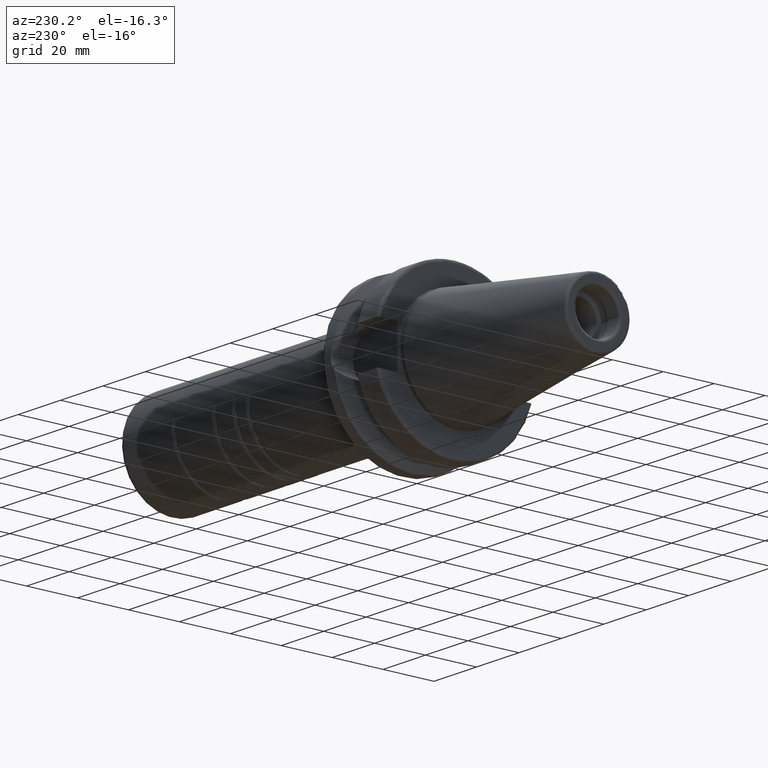
[diagram: clean part render]
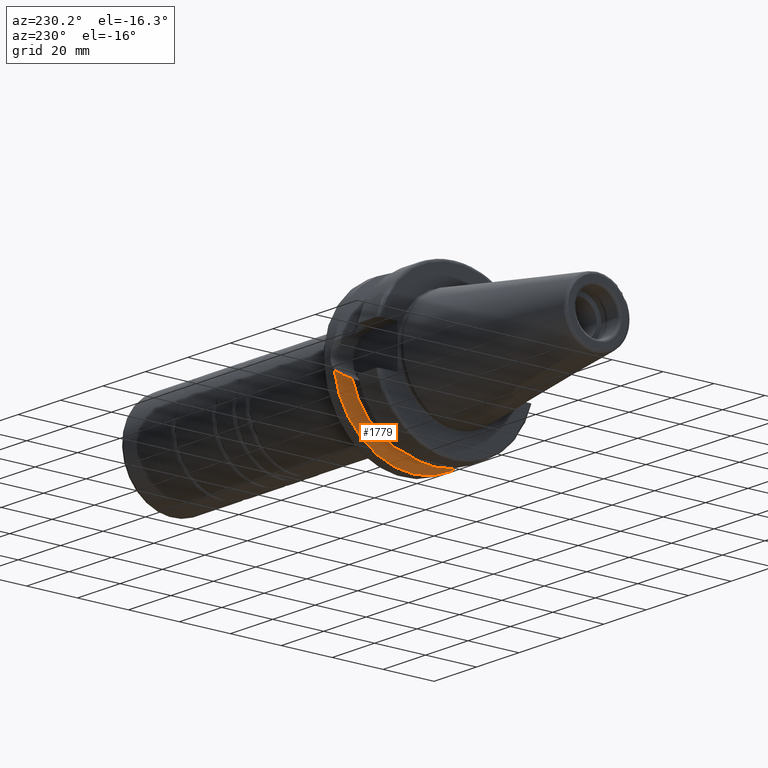
[diagram: same view with one face highlighted and labeled with its STEP entity id]
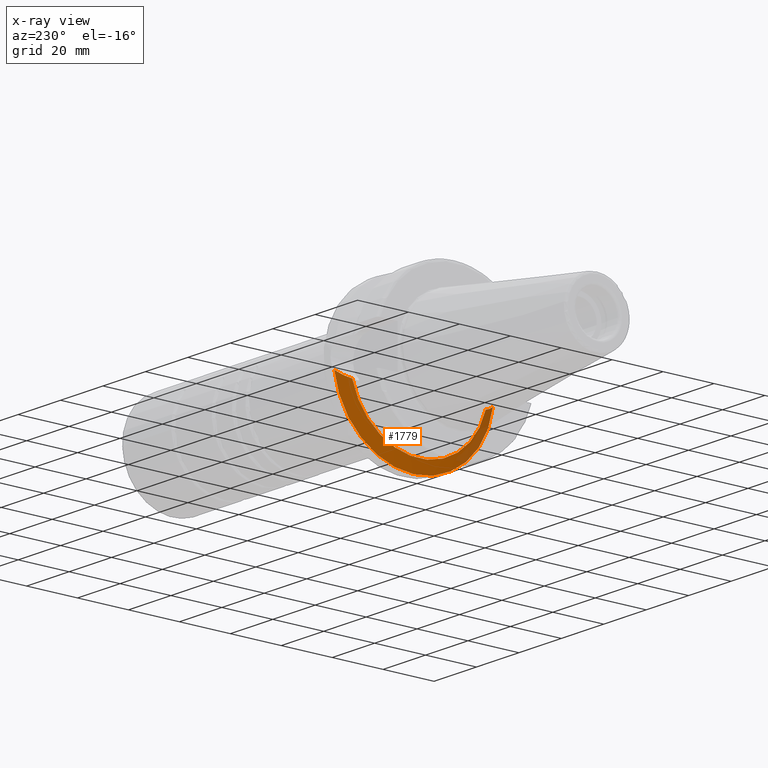
[diagram: x-ray of the same camera — body ghosted, the highlighted face saturated]
A machine part, auxiliary view. The second image highlights one B-rep face of the part: STEP entity #1779.
The next image is the same camera in x-ray: the body ghosted, the highlighted face saturated — about 15% of this face is hidden behind the body in this view.
In plain terms, the highlighted conical surface has half-angle 60.125 deg.
Its self-contained STEP definition (entity closure, byte-faithful):
#80=CONICAL_SURFACE('',#2065,29.2970358274569,1.0493792127616);
#201=FACE_OUTER_BOUND('',#314,.T.);
#314=EDGE_LOOP('',(#1348,#1349,#1350,#1351));
#441=CIRCLE('',#2062,31.5);
#444=CIRCLE('',#2066,27.0940716549138);
#739=B_SPLINE_CURVE_WITH_KNOTS('',3,(#3023,#3024,#3025,#3026,#3027,#3028),
 .UNSPECIFIED.,.F.,.F.,(4,2,4),(3.12975744792551,3.6269928875698,3.7084873746139),
 .UNSPECIFIED.);
#747=B_SPLINE_CURVE_WITH_KNOTS('',3,(#3139,#3140,#3141,#3142,#3143,#3144),
 .UNSPECIFIED.,.F.,.F.,(4,2,4),(1.46421027899563,1.54570476603974,2.04294020568402),
 .UNSPECIFIED.);
#795=VERTEX_POINT('',#3020);
#796=VERTEX_POINT('',#3022);
#818=VERTEX_POINT('',#3121);
#820=VERTEX_POINT('',#3137);
#989=EDGE_CURVE('',#796,#795,#739,.T.);
#1015=EDGE_CURVE('',#796,#818,#441,.T.);
#1019=EDGE_CURVE('',#795,#820,#444,.T.);
#1020=EDGE_CURVE('',#820,#818,#747,.T.);
#1348=ORIENTED_EDGE('',*,*,#989,.T.);
#1349=ORIENTED_EDGE('',*,*,#1019,.T.);
#1350=ORIENTED_EDGE('',*,*,#1020,.T.);
#1351=ORIENTED_EDGE('',*,*,#1015,.F.);
#1779=ADVANCED_FACE('',(#201),#80,.T.);
#2062=AXIS2_PLACEMENT_3D('',#3122,#2412,#2413);
#2065=AXIS2_PLACEMENT_3D('',#3136,#2418,#2419);
#2066=AXIS2_PLACEMENT_3D('',#3138,#2420,#2421);
#2412=DIRECTION('center_axis',(1.,0.,0.));
#2413=DIRECTION('ref_axis',(0.,0.,-1.));
#2418=DIRECTION('center_axis',(1.,0.,0.));
#2419=DIRECTION('ref_axis',(0.,1.,0.));
#2420=DIRECTION('center_axis',(1.,0.,0.));
#2421=DIRECTION('ref_axis',(0.,0.,-1.));
#3020=CARTESIAN_POINT('',(19.1,-26.201311395455,-6.89782574439221));
#3022=CARTESIAN_POINT('',(21.6309636926618,-31.1782420264945,-4.49079326370462));
#3023=CARTESIAN_POINT('Ctrl Pts',(21.6309636926618,-31.1782420264945,-4.49079326370461));
#3024=CARTESIAN_POINT('Ctrl Pts',(20.9728756148302,-29.8797957262939,-5.46983244373119));
#3025=CARTESIAN_POINT('Ctrl Pts',(20.1784155384866,-28.3157123387483,-6.1823136897693));
#3026=CARTESIAN_POINT('Ctrl Pts',(19.3406963650696,-26.6728819297427,-6.74867108656043));
#3027=CARTESIAN_POINT('Ctrl Pts',(19.2210929544554,-26.438473693351,-6.82497151762397));
#3028=CARTESIAN_POINT('Ctrl Pts',(19.1,-26.201311395455,-6.89782574439222));
#3121=CARTESIAN_POINT('',(21.6309636926618,31.1782420264945,-4.49079326370462));
#3122=CARTESIAN_POINT('Origin',(21.6309636926618,0.,0.));
#3136=CARTESIAN_POINT('Origin',(20.3654818463309,0.,0.));
#3137=CARTESIAN_POINT('',(19.1,26.201311395455,-6.89782574439221));
#3138=CARTESIAN_POINT('Origin',(19.1,0.,0.));
#3139=CARTESIAN_POINT('Ctrl Pts',(19.1,26.201311395455,-6.89782574439221));
#3140=CARTESIAN_POINT('Ctrl Pts',(19.2210929544554,26.438473693351,-6.82497151762396));
#3141=CARTESIAN_POINT('Ctrl Pts',(19.3406963650696,26.6728819297427,-6.74867108656043));
#3142=CARTESIAN_POINT('Ctrl Pts',(20.1784155384866,28.3157123387483,-6.1823136897693));
#3143=CARTESIAN_POINT('Ctrl Pts',(20.9728756148302,29.8797957262938,-5.46983244373119));
#3144=CARTESIAN_POINT('Ctrl Pts',(21.6309636926618,31.1782420264945,-4.49079326370462));